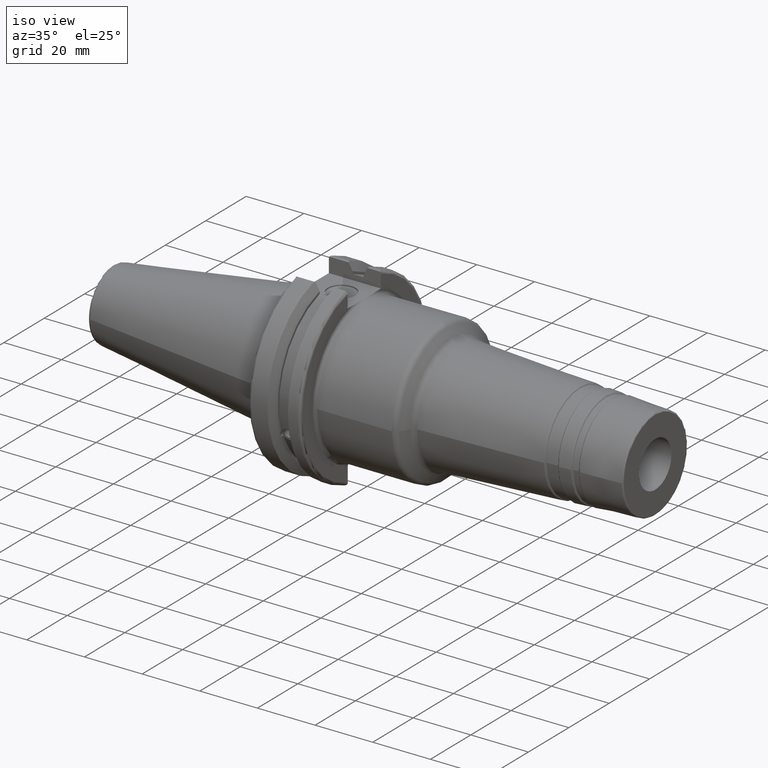
[diagram: clean part render]
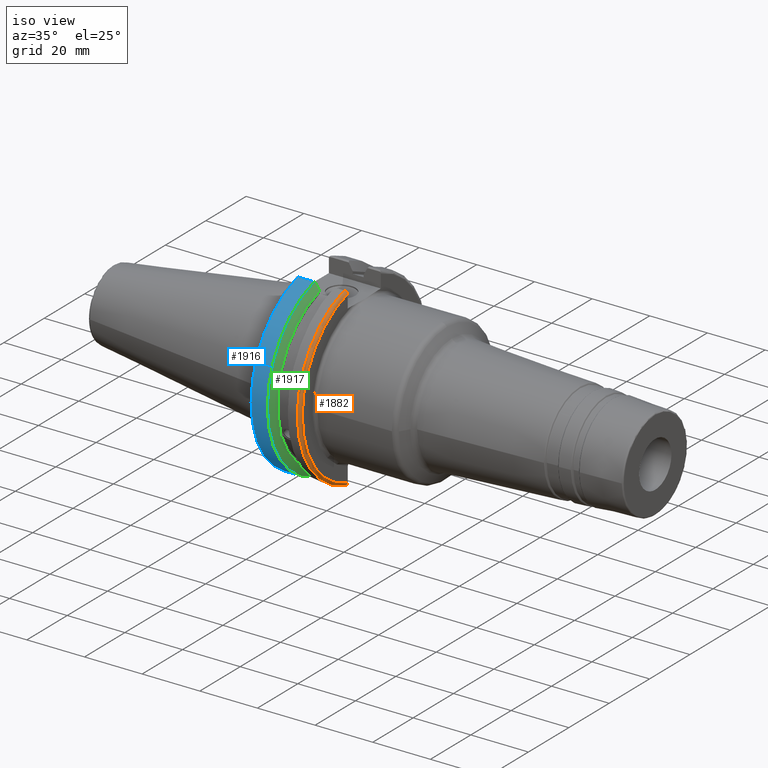
[diagram: same view with three faces highlighted in distinct colors, each labeled with its STEP entity id]
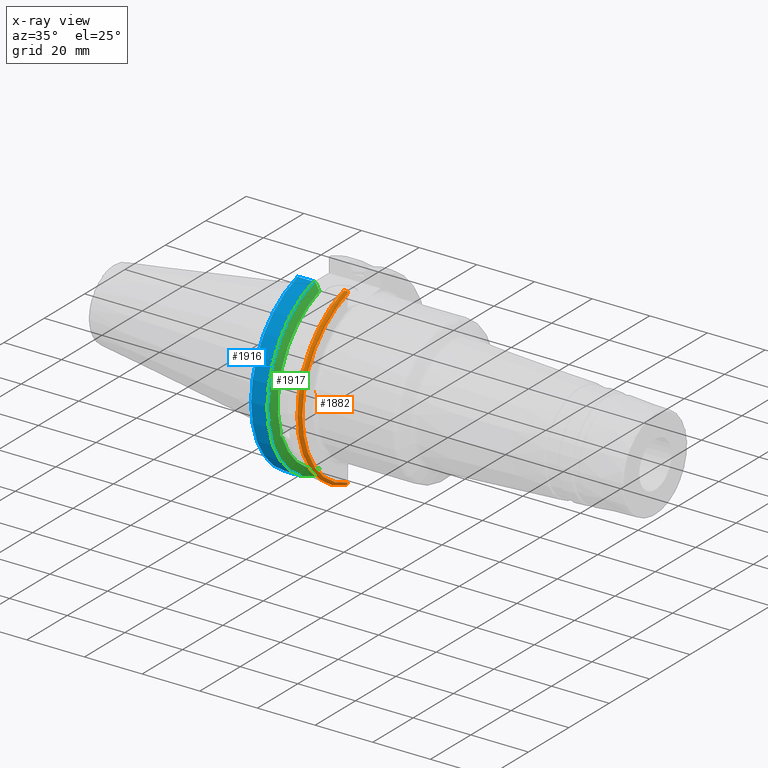
[diagram: x-ray of the same camera — body ghosted, the three highlighted faces saturated]
A machine part, iso view with three faces highlighted in distinct colors.
The next image is the same camera in x-ray (body ghosted, the three faces saturated) — at least one of them is partly hidden behind the body in this view.
Their STEP definitions:

[orange] entity #1882 — the highlighted toroidal blend (fillet) surface has major radius 30.75 mm and minor (blend) radius 1 mm.
#106=B_SPLINE_CURVE_WITH_KNOTS('',3,(#3526,#3527,#3528,#3529,#3530,#3531),
 .UNSPECIFIED.,.F.,.F.,(4,2,4),(0.0977383630915687,0.112311108149119,0.150804350305566),
 .UNSPECIFIED.);
#107=B_SPLINE_CURVE_WITH_KNOTS('',3,(#3533,#3534,#3535,#3536,#3537,#3538),
 .UNSPECIFIED.,.F.,.F.,(4,2,4),(0.452741154494497,0.491581665024872,0.505824174364156),
 .UNSPECIFIED.);
#108=B_SPLINE_CURVE_WITH_KNOTS('',3,(#3540,#3541,#3542,#3543,#3544,#3545,
#3546,#3547),.UNSPECIFIED.,.F.,.F.,(4,2,2,4),(-0.104180282751876,-0.072978474246144,
-0.0343524753874979,0.),.UNSPECIFIED.);
#109=B_SPLINE_CURVE_WITH_KNOTS('',3,(#3550,#3551,#3552,#3553,#3554,#3555,
#3556,#3557),.UNSPECIFIED.,.F.,.F.,(4,2,2,4),(0.,0.0343524753874979,0.0729784742461441,
0.104180282751877),.UNSPECIFIED.);
#441=FACE_OUTER_BOUND('',#556,.T.);
#556=EDGE_LOOP('',(#1579,#1580,#1581,#1582,#1583,#1584));
#654=CIRCLE('',#2018,30.75);
#700=CIRCLE('',#2127,31.75);
#776=VERTEX_POINT('',#2953);
#777=VERTEX_POINT('',#2955);
#879=VERTEX_POINT('',#3525);
#880=VERTEX_POINT('',#3532);
#881=VERTEX_POINT('',#3539);
#882=VERTEX_POINT('',#3548);
#988=EDGE_CURVE('',#777,#776,#654,.T.);
#1133=EDGE_CURVE('',#879,#777,#106,.T.);
#1134=EDGE_CURVE('',#776,#880,#107,.T.);
#1135=EDGE_CURVE('',#880,#881,#108,.T.);
#1136=EDGE_CURVE('',#881,#882,#700,.T.);
#1137=EDGE_CURVE('',#882,#879,#109,.T.);
#1579=ORIENTED_EDGE('',*,*,#1133,.T.);
#1580=ORIENTED_EDGE('',*,*,#988,.T.);
#1581=ORIENTED_EDGE('',*,*,#1134,.T.);
#1582=ORIENTED_EDGE('',*,*,#1135,.T.);
#1583=ORIENTED_EDGE('',*,*,#1136,.T.);
#1584=ORIENTED_EDGE('',*,*,#1137,.T.);
#1812=TOROIDAL_SURFACE('',#2126,30.75,1.);
#1882=ADVANCED_FACE('',(#441),#1812,.T.);
#2018=AXIS2_PLACEMENT_3D('',#2956,#2354,#2355);
#2126=AXIS2_PLACEMENT_3D('',#3524,#2619,#2620);
#2127=AXIS2_PLACEMENT_3D('',#3549,#2621,#2622);
#2354=DIRECTION('center_axis',(-1.,0.,0.));
#2355=DIRECTION('ref_axis',(0.,-1.,1.60812264967664E-16));
#2619=DIRECTION('center_axis',(1.,0.,0.));
#2620=DIRECTION('ref_axis',(0.,0.,-1.));
#2621=DIRECTION('center_axis',(1.,0.,0.));
#2622=DIRECTION('ref_axis',(0.,-1.,1.60812264967664E-16));
#2953=CARTESIAN_POINT('',(19.05,-8.19,29.6392712461019));
#2955=CARTESIAN_POINT('',(19.05,-8.19,-29.6392712461019));
#2956=CARTESIAN_POINT('Origin',(19.05,0.,0.));
#3524=CARTESIAN_POINT('Origin',(18.05,0.,0.));
#3525=CARTESIAN_POINT('',(18.9058722749097,-8.19,-30.1755016258903));
#3526=CARTESIAN_POINT('Ctrl Pts',(18.9058722749097,-8.19,-30.1755016258903));
#3527=CARTESIAN_POINT('Ctrl Pts',(18.9324477233044,-8.19,-30.1299319366157));
#3528=CARTESIAN_POINT('Ctrl Pts',(18.9550700364447,-8.19,-30.0829389905409));
#3529=CARTESIAN_POINT('Ctrl Pts',(19.0210043632013,-8.19,-29.9188002007263));
#3530=CARTESIAN_POINT('Ctrl Pts',(19.05,-8.19,-29.76758205329));
#3531=CARTESIAN_POINT('Ctrl Pts',(19.05,-8.19,-29.6392712461019));
#3532=CARTESIAN_POINT('',(18.9058722749097,-8.19,30.1755016258903));
#3533=CARTESIAN_POINT('Ctrl Pts',(19.05,-8.19,29.6392712461019));
#3534=CARTESIAN_POINT('Ctrl Pts',(19.05,-8.19,29.7687396145364));
#3535=CARTESIAN_POINT('Ctrl Pts',(19.020485567083,-8.19,29.9212724384851));
#3536=CARTESIAN_POINT('Ctrl Pts',(18.9539643471756,-8.19,30.0852355256475));
#3537=CARTESIAN_POINT('Ctrl Pts',(18.9318163728133,-8.19,30.131014531546));
#3538=CARTESIAN_POINT('Ctrl Pts',(18.9058722749097,-8.19,30.1755016258903));
#3539=CARTESIAN_POINT('',(18.05,-8.67204822802685,30.5427254764662));
#3540=CARTESIAN_POINT('Ctrl Pts',(18.9058722749097,-8.19,30.1755016258903));
#3541=CARTESIAN_POINT('Ctrl Pts',(18.8574463042989,-8.2703682833078,30.2367261024977));
#3542=CARTESIAN_POINT('Ctrl Pts',(18.7926702662319,-8.34909446036477,30.2966996242308));
#3543=CARTESIAN_POINT('Ctrl Pts',(18.6396724190507,-8.48862804755883,30.4029961692546));
#3544=CARTESIAN_POINT('Ctrl Pts',(18.5184414294771,-8.56482138642532,30.4610401774263));
#3545=CARTESIAN_POINT('Ctrl Pts',(18.2983170433775,-8.6471881193939,30.5237870709558));
#3546=CARTESIAN_POINT('Ctrl Pts',(18.1645082512917,-8.67204822802685,30.5427254764662));
#3547=CARTESIAN_POINT('Ctrl Pts',(18.05,-8.67204822802685,30.5427254764662));
#3548=CARTESIAN_POINT('',(18.05,-8.67204822802685,-30.5427254764662));
#3549=CARTESIAN_POINT('Origin',(18.05,0.,0.));
#3550=CARTESIAN_POINT('Ctrl Pts',(18.05,-8.67204822802686,-30.5427254764662));
#3551=CARTESIAN_POINT('Ctrl Pts',(18.1645082512917,-8.67204822802686,-30.5427254764662));
#3552=CARTESIAN_POINT('Ctrl Pts',(18.2983170433775,-8.6471881193939,-30.5237870709558));
#3553=CARTESIAN_POINT('Ctrl Pts',(18.5184414294771,-8.56482138642532,-30.4610401774263));
#3554=CARTESIAN_POINT('Ctrl Pts',(18.6396724190507,-8.48862804755884,-30.4029961692546));
#3555=CARTESIAN_POINT('Ctrl Pts',(18.7926702662319,-8.34909446036477,-30.2966996242308));
#3556=CARTESIAN_POINT('Ctrl Pts',(18.8574463042989,-8.27036828330781,-30.2367261024977));
#3557=CARTESIAN_POINT('Ctrl Pts',(18.9058722749097,-8.19,-30.1755016258903));

[blue] entity #1916 — the highlighted cylindrical surface (partial cylindrical patch) has radius 31.75 mm, axis along (1, 0, 0).
#78=CYLINDRICAL_SURFACE('',#2185,31.75);
#242=LINE('',#3634,#335);
#247=LINE('',#3691,#340);
#335=VECTOR('',#2656,10.);
#340=VECTOR('',#2691,10.);
#475=FACE_OUTER_BOUND('',#595,.T.);
#595=EDGE_LOOP('',(#1769,#1770,#1771,#1772));
#701=CIRCLE('',#2131,31.75);
#725=CIRCLE('',#2186,31.75);
#894=VERTEX_POINT('',#3601);
#895=VERTEX_POINT('',#3610);
#900=VERTEX_POINT('',#3633);
#909=VERTEX_POINT('',#3687);
#1154=EDGE_CURVE('',#894,#895,#701,.T.);
#1163=EDGE_CURVE('',#895,#900,#242,.T.);
#1180=EDGE_CURVE('',#909,#894,#247,.T.);
#1209=EDGE_CURVE('',#900,#909,#725,.T.);
#1769=ORIENTED_EDGE('',*,*,#1154,.F.);
#1770=ORIENTED_EDGE('',*,*,#1180,.F.);
#1771=ORIENTED_EDGE('',*,*,#1209,.F.);
#1772=ORIENTED_EDGE('',*,*,#1163,.F.);
#1916=ADVANCED_FACE('',(#475),#78,.T.);
#2131=AXIS2_PLACEMENT_3D('',#3611,#2640,#2641);
#2185=AXIS2_PLACEMENT_3D('',#3760,#2769,#2770);
#2186=AXIS2_PLACEMENT_3D('',#3761,#2771,#2772);
#2640=DIRECTION('center_axis',(-1.,0.,0.));
#2641=DIRECTION('ref_axis',(0.,-1.,1.60812264967664E-16));
#2656=DIRECTION('',(1.,0.,0.));
#2691=DIRECTION('',(-1.,0.,0.));
#2769=DIRECTION('center_axis',(1.,0.,0.));
#2770=DIRECTION('ref_axis',(0.,-1.,1.22464679914735E-16));
#2771=DIRECTION('center_axis',(1.,0.,0.));
#2772=DIRECTION('ref_axis',(0.,0.,-1.));
#3601=CARTESIAN_POINT('',(2.,-8.67204822802685,-30.5427254764662));
#3610=CARTESIAN_POINT('',(2.,-8.67204822802685,30.5427254764662));
#3611=CARTESIAN_POINT('Origin',(2.,0.,0.));
#3633=CARTESIAN_POINT('',(7.64983323092436,-8.67204822802685,30.5427254764662));
#3634=CARTESIAN_POINT('',(4.32491661546218,-8.67204822802685,30.5427254764662));
#3687=CARTESIAN_POINT('',(7.64983323092436,-8.67204822802685,-30.5427254764662));
#3691=CARTESIAN_POINT('',(4.32491661546218,-8.67204822802685,-30.5427254764662));
#3760=CARTESIAN_POINT('Origin',(4.32491661546218,0.,0.));
#3761=CARTESIAN_POINT('Origin',(7.64983323092436,0.,0.));

[green] entity #1917 — the highlighted conical surface has half-angle 60 deg.
#25=(
BOUNDED_CURVE()
B_SPLINE_CURVE(2,(#3573,#3574,#3575),.UNSPECIFIED.,.F.,.F.)
B_SPLINE_CURVE_WITH_KNOTS((3,3),(0.,0.27654914279601),.UNSPECIFIED.)
CURVE()
GEOMETRIC_REPRESENTATION_ITEM()
RATIONAL_B_SPLINE_CURVE((1.,1.00095203903532,1.00031614444885))
REPRESENTATION_ITEM('')
);
#26=(
BOUNDED_CURVE()
B_SPLINE_CURVE(2,(#3585,#3586,#3587),.UNSPECIFIED.,.F.,.F.)
B_SPLINE_CURVE_WITH_KNOTS((3,3),(0.0550586467392668,0.331607789535851),
 .UNSPECIFIED.)
CURVE()
GEOMETRIC_REPRESENTATION_ITEM()
RATIONAL_B_SPLINE_CURVE((1.0003161444496,1.00095203903759,1.))
REPRESENTATION_ITEM('')
);
#27=(
BOUNDED_CURVE()
B_SPLINE_CURVE(2,(#3635,#3636,#3637),.UNSPECIFIED.,.F.,.F.)
B_SPLINE_CURVE_WITH_KNOTS((3,3),(0.,0.0639048713675873),.UNSPECIFIED.)
CURVE()
GEOMETRIC_REPRESENTATION_ITEM()
RATIONAL_B_SPLINE_CURVE((1.,1.00028444218292,1.00047644010589))
REPRESENTATION_ITEM('')
);
#28=(
BOUNDED_CURVE()
B_SPLINE_CURVE(2,(#3688,#3689,#3690),.UNSPECIFIED.,.F.,.F.)
B_SPLINE_CURVE_WITH_KNOTS((3,3),(0.329353533631225,0.393258405001025),
 .UNSPECIFIED.)
CURVE()
GEOMETRIC_REPRESENTATION_ITEM()
RATIONAL_B_SPLINE_CURVE((1.00047644010574,1.00028444218284,1.))
REPRESENTATION_ITEM('')
);
#92=B_SPLINE_CURVE_WITH_KNOTS('',3,(#3188,#3189,#3190,#3191,#3192,#3193,
#3194,#3195,#3196,#3197,#3198,#3199,#3200,#3201),.UNSPECIFIED.,.F.,.F.,
(4,2,2,2,2,2,4),(0.451995700189025,0.464547828547661,0.504528771685166,
0.544509714822671,0.584490657960176,0.624471601097681,0.637023729456317),
 .UNSPECIFIED.);
#375=CONICAL_SURFACE('',#2187,30.3546886482472,1.0471975511966);
#476=FACE_OUTER_BOUND('',#596,.T.);
#596=EDGE_LOOP('',(#1773,#1774,#1775,#1776,#1777,#1778,#1779,#1780));
#684=CIRCLE('',#2083,28.9593772964944);
#725=CIRCLE('',#2186,31.75);
#726=CIRCLE('',#2188,28.9593772964944);
#814=VERTEX_POINT('',#3185);
#815=VERTEX_POINT('',#3187);
#832=VERTEX_POINT('',#3280);
#886=VERTEX_POINT('',#3570);
#887=VERTEX_POINT('',#3572);
#890=VERTEX_POINT('',#3584);
#900=VERTEX_POINT('',#3633);
#909=VERTEX_POINT('',#3687);
#1043=EDGE_CURVE('',#815,#814,#92,.T.);
#1067=EDGE_CURVE('',#815,#832,#684,.T.);
#1142=EDGE_CURVE('',#887,#886,#25,.T.);
#1148=EDGE_CURVE('',#890,#832,#26,.T.);
#1164=EDGE_CURVE('',#900,#886,#27,.T.);
#1179=EDGE_CURVE('',#890,#909,#28,.T.);
#1209=EDGE_CURVE('',#900,#909,#725,.T.);
#1210=EDGE_CURVE('',#887,#814,#726,.T.);
#1773=ORIENTED_EDGE('',*,*,#1043,.T.);
#1774=ORIENTED_EDGE('',*,*,#1210,.F.);
#1775=ORIENTED_EDGE('',*,*,#1142,.T.);
#1776=ORIENTED_EDGE('',*,*,#1164,.F.);
#1777=ORIENTED_EDGE('',*,*,#1209,.T.);
#1778=ORIENTED_EDGE('',*,*,#1179,.F.);
#1779=ORIENTED_EDGE('',*,*,#1148,.T.);
#1780=ORIENTED_EDGE('',*,*,#1067,.F.);
#1917=ADVANCED_FACE('',(#476),#375,.T.);
#2083=AXIS2_PLACEMENT_3D('',#3281,#2509,#2510);
#2186=AXIS2_PLACEMENT_3D('',#3761,#2771,#2772);
#2187=AXIS2_PLACEMENT_3D('',#3762,#2773,#2774);
#2188=AXIS2_PLACEMENT_3D('',#3763,#2775,#2776);
#2509=DIRECTION('center_axis',(1.,0.,0.));
#2510=DIRECTION('ref_axis',(0.,0.,-1.));
#2771=DIRECTION('center_axis',(1.,0.,0.));
#2772=DIRECTION('ref_axis',(0.,0.,-1.));
#2773=DIRECTION('center_axis',(-1.,0.,0.));
#2774=DIRECTION('ref_axis',(0.,-1.,-1.22464679914735E-16));
#2775=DIRECTION('center_axis',(1.,0.,0.));
#2776=DIRECTION('ref_axis',(0.,0.,-1.));
#3185=CARTESIAN_POINT('',(9.261,-27.4956274489925,-9.09043478536247));
#3187=CARTESIAN_POINT('',(9.261,-26.9060914640648,-10.7101715919071));
#3188=CARTESIAN_POINT('Ctrl Pts',(9.26099999999999,-26.9060914640648,-10.7101715919071));
#3189=CARTESIAN_POINT('Ctrl Pts',(9.24687959280038,-26.9406927482839,-10.6893765730703));
#3190=CARTESIAN_POINT('Ctrl Pts',(9.23340701821433,-26.9744191989197,-10.6676007180673));
#3191=CARTESIAN_POINT('Ctrl Pts',(9.18001855884095,-27.1113422433189,-10.5723885976054));
#3192=CARTESIAN_POINT('Ctrl Pts',(9.14188029158246,-27.2180531796526,-10.4801333026531));
#3193=CARTESIAN_POINT('Ctrl Pts',(9.08968935539424,-27.3968610665578,-10.2639559818059));
#3194=CARTESIAN_POINT('Ctrl Pts',(9.076,-27.4684373304961,-10.139516340139));
#3195=CARTESIAN_POINT('Ctrl Pts',(9.076,-27.559599249844,-9.8890510252165));
#3196=CARTESIAN_POINT('Ctrl Pts',(9.08968935539424,-27.5847569104122,-9.74771639360671));
#3197=CARTESIAN_POINT('Ctrl Pts',(9.14188029158246,-27.5867382255984,-9.46717946402648));
#3198=CARTESIAN_POINT('Ctrl Pts',(9.18001855884095,-27.5642934663232,-9.32791534028656));
#3199=CARTESIAN_POINT('Ctrl Pts',(9.23340701821433,-27.5206055003512,-9.16696618806878));
#3200=CARTESIAN_POINT('Ctrl Pts',(9.24687959280038,-27.5087667900418,-9.12860597076218));
#3201=CARTESIAN_POINT('Ctrl Pts',(9.261,-27.4956274489925,-9.09043478536247));
#3280=CARTESIAN_POINT('',(9.261,-8.19,-27.7771386827498));
#3281=CARTESIAN_POINT('Origin',(9.261,0.,0.));
#3570=CARTESIAN_POINT('',(7.92858530351256,-8.19,30.1755016258903));
#3572=CARTESIAN_POINT('',(9.261,-8.19,27.7771386827498));
#3573=CARTESIAN_POINT('Ctrl Pts',(9.261,-8.19,27.7771386827498));
#3574=CARTESIAN_POINT('Ctrl Pts',(8.62236356152083,-8.19,28.930368953976));
#3575=CARTESIAN_POINT('Ctrl Pts',(7.92858530351256,-8.19,30.1755016258903));
#3584=CARTESIAN_POINT('',(7.92858530351256,-8.19,-30.1755016258903));
#3585=CARTESIAN_POINT('Ctrl Pts',(7.92858530351256,-8.19,-30.1755016258903));
#3586=CARTESIAN_POINT('Ctrl Pts',(8.62236356152658,-8.19,-28.9303689539657));
#3587=CARTESIAN_POINT('Ctrl Pts',(9.261,-8.19,-27.7771386827498));
#3633=CARTESIAN_POINT('',(7.64983323092436,-8.67204822802685,30.5427254764662));
#3635=CARTESIAN_POINT('Ctrl Pts',(7.64983323092436,-8.67204822802685,30.5427254764662));
#3636=CARTESIAN_POINT('Ctrl Pts',(7.79089148121629,-8.42917748262643,30.357706789263));
#3637=CARTESIAN_POINT('Ctrl Pts',(7.92858530351256,-8.19,30.1755016258903));
#3687=CARTESIAN_POINT('',(7.64983323092436,-8.67204822802685,-30.5427254764662));
#3688=CARTESIAN_POINT('Ctrl Pts',(7.92858530351256,-8.19,-30.1755016258903));
#3689=CARTESIAN_POINT('Ctrl Pts',(7.7908914812116,-8.42917748263465,-30.3577067892692));
#3690=CARTESIAN_POINT('Ctrl Pts',(7.64983323092436,-8.67204822802686,-30.5427254764662));
#3761=CARTESIAN_POINT('Origin',(7.64983323092436,0.,0.));
#3762=CARTESIAN_POINT('Origin',(8.45541661546218,0.,0.));
#3763=CARTESIAN_POINT('Origin',(9.261,0.,0.));